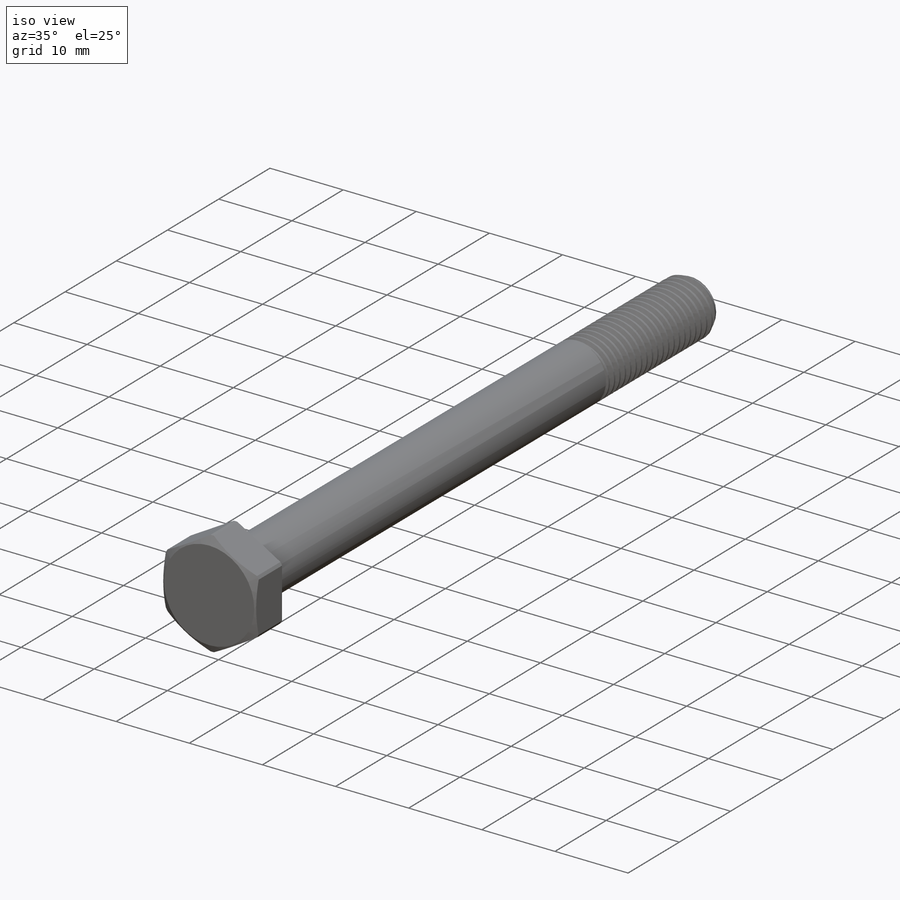
[diagram: iso view]
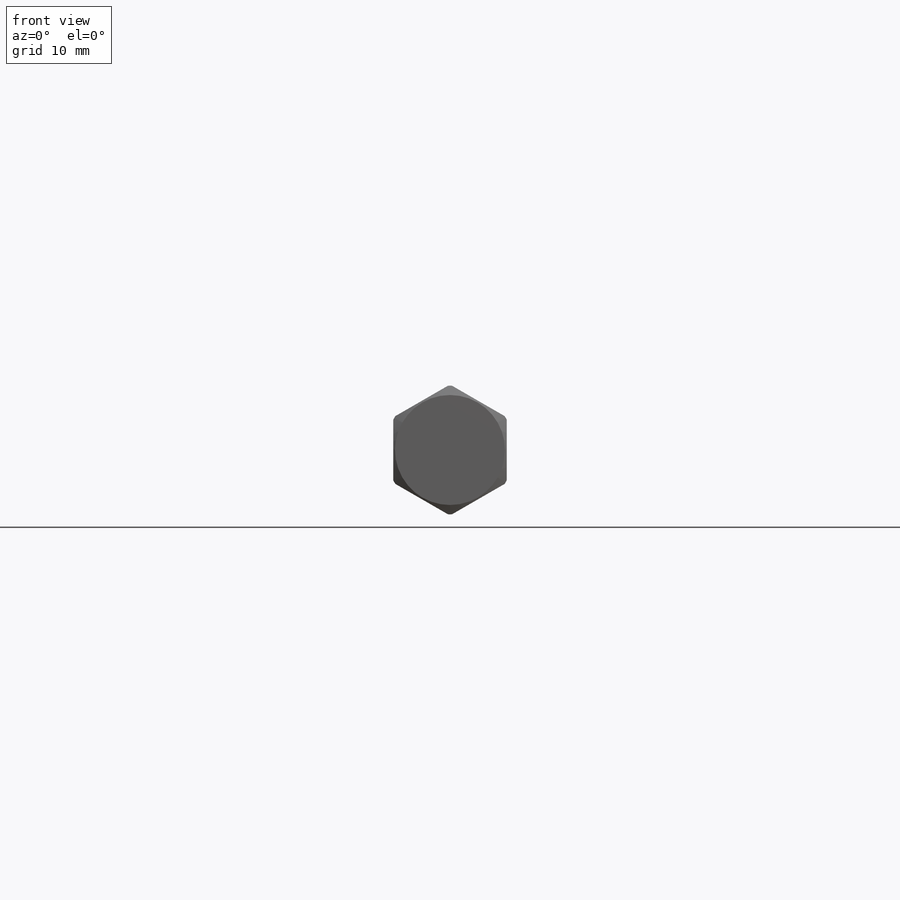
[diagram: front view]
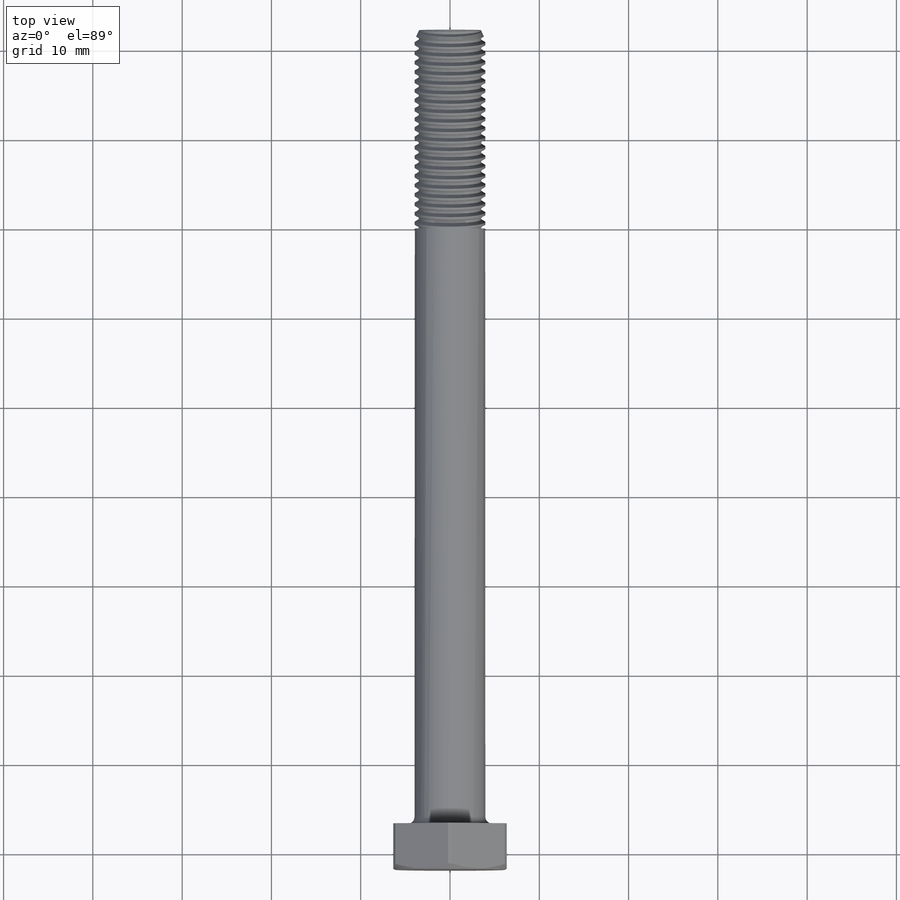
[diagram: top view]
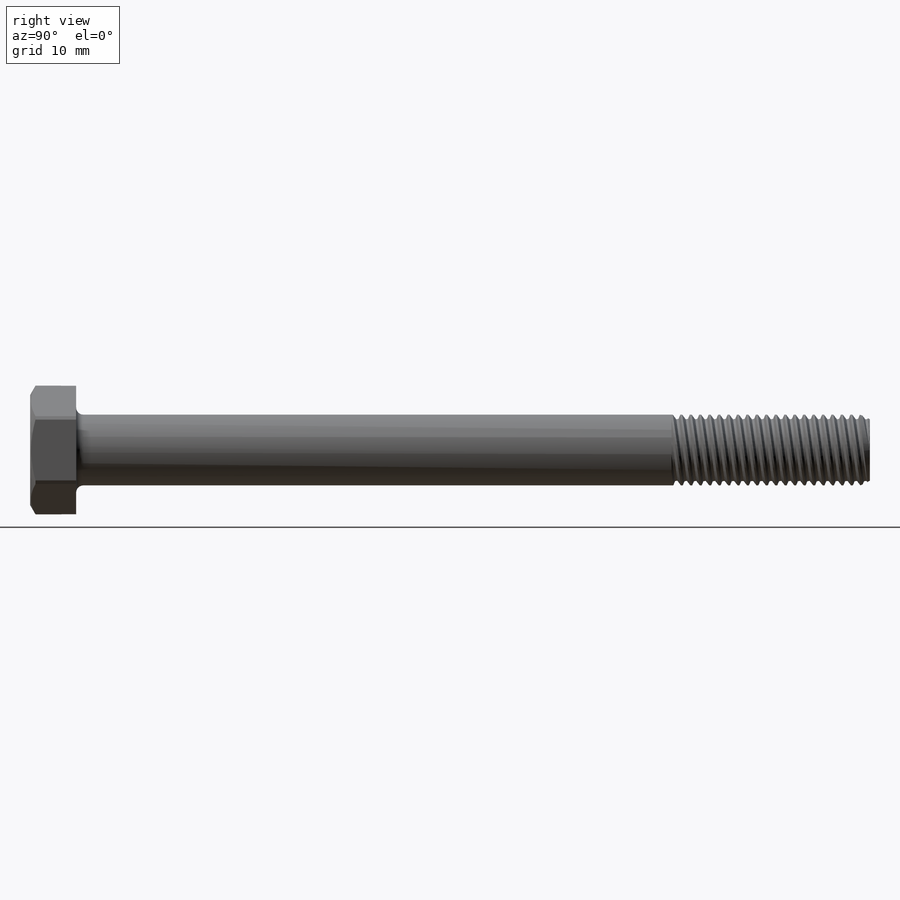
[diagram: right view]
SOLIDWORKS PART (.sldprt)
format: sldprt  version: not decoded by parser v0  size: 555,008 bytes
history: native  units: mm
features: sketch x6, cut_revolve x3, revolve x2, material x1, pattern_linear x1, extrude x1, fillet x1 (+11 scaffold rows collapsed)
feature tree (26):
  scaffold x11  (default folders/planes/origin — collapsed)
  material  "Plain Carbon Steel"
  sketch  "Sketch1"  dims[Screw Dia=7.9375mm Min Thread Length=22.225mm Screw Length=88.9mm Head Height=~5.159375mm Head Width=12.7mm Max Thread Length=50.8mm]
  revolve  "Revolve1"  Angle=360deg
  sketch  "Sketch2"  dims[c1.Thread Pitch=5.08mm c1.D1=~1.058333mm c1.D2=~3.620395mm c2.D2=~36.638946deg c2.Thread Pitch=~1.058333mm c2.D3=~0.264583mm c2.D4=~0.132292mm c2.D5=~4.26459mm c3.D5=60.0deg]
  cut_revolve  "Cut-Revolve1"  Angle=360deg
  sketch  "Sketch3"  dims[c1.D1=~8.347053mm c2.D1=25.0deg c2.D2=7.9375mm]
  cut_revolve  "Cut-Revolve2"  Angle=360deg
  pattern_linear  "LPattern1"  Count1=2 Count2=21 Spacing1=1.058333mm Spacing2=1.058333mm
  sketch  "Sketch4"
  revolve  "Revolve2"  Angle=360deg
  sketch  "Sketch5"  dims[D1=12.7mm]
  extrude  "Extrude1"  [1 undecoded]
  sketch  "Sketch6"  dims[c1.Hole Dia=~3.96875mm c1.D1=~7.71858mm c2.D1=30.0deg c2.D2=0.127mm c2.D3=0.508mm c2.D4=12.319mm c2.D5=~5.159375mm c2.D6=88.9mm]
  cut_revolve  "Cut-Revolve3"  Angle=360deg
  fillet  "Fillet1"  Radius=0.79375mm
decode coverage: 12 of 14 modeling features carry decoded parameters
note: ~ marks probable driven/reference dimensions
note: 1 parameter value undecoded
note: suppression state not decoded; provenance and decode notes live in map.json
